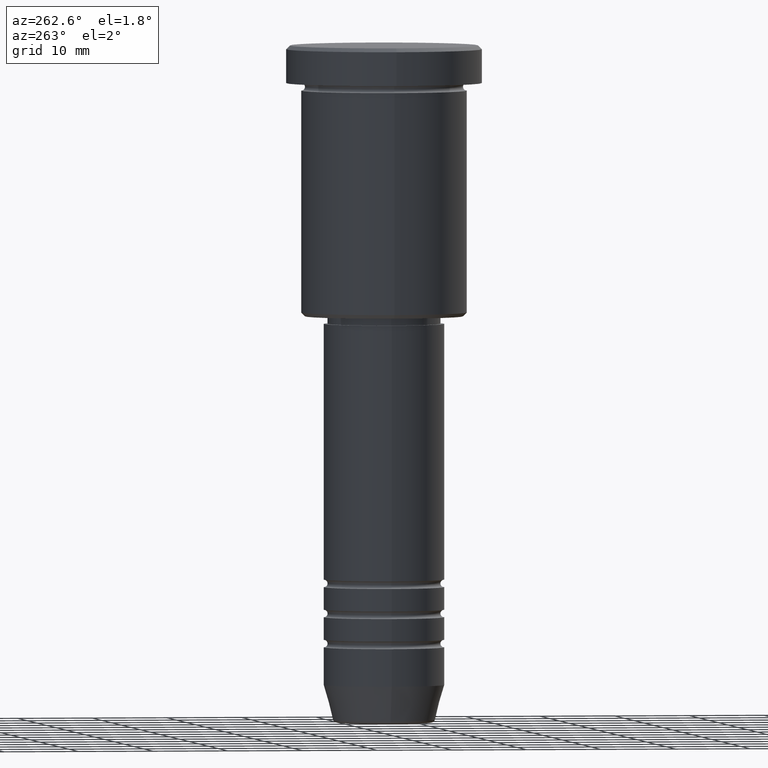
[diagram: clean part render]
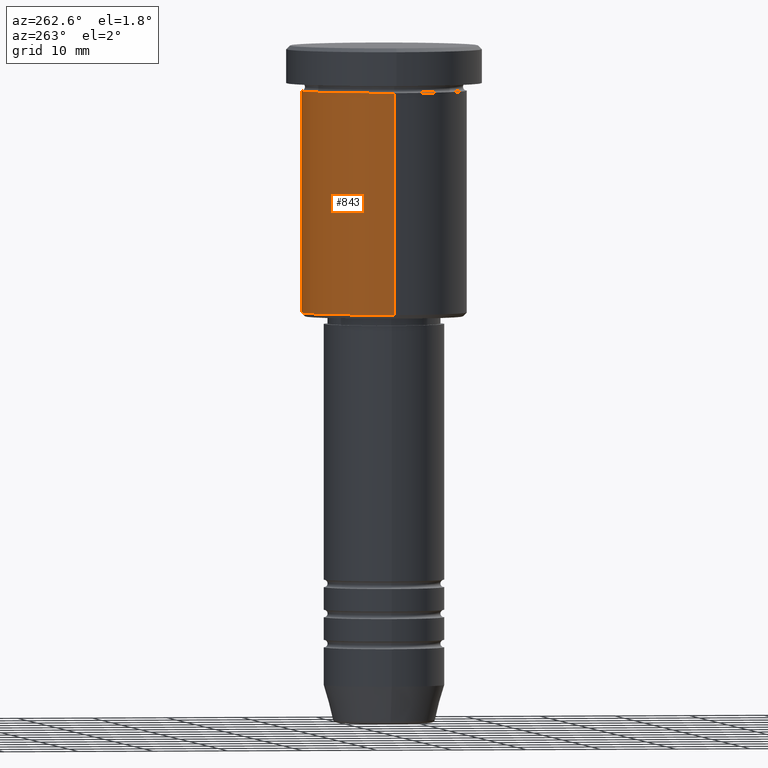
[diagram: same view with one face highlighted and labeled with its STEP entity id]
A machine part, auxiliary view. The second image highlights one B-rep face of the part: STEP entity #843.
In plain terms, the highlighted cylindrical surface (partial cylindrical patch) has radius 11 mm, axis along (-0, -0, 1).
Its self-contained STEP definition (entity closure, byte-faithful):
#27 = DIRECTION ( 'NONE',  ( 1.000000000000000000, 0.000000000000000000, 0.000000000000000000 ) ) ;
#29 = DIRECTION ( 'NONE',  ( -0.000000000000000000, -0.000000000000000000, 1.000000000000000000 ) ) ;
#58 = DIRECTION ( 'NONE',  ( 1.000000000000000000, 0.000000000000000000, 0.000000000000000000 ) ) ;
#73 = CARTESIAN_POINT ( 'NONE',  ( 0.000000000000000000, 0.000000000000000000, -5.999999999999999112 ) ) ;
#102 = EDGE_CURVE ( 'NONE', #649, #290, #391, .T. ) ;
#134 = VERTEX_POINT ( 'NONE', #295 ) ;
#216 = ORIENTED_EDGE ( 'NONE', *, *, #835, .T. ) ;
#279 = EDGE_CURVE ( 'NONE', #134, #290, #947, .T. ) ;
#286 = AXIS2_PLACEMENT_3D ( 'NONE', #454, #585, #527 ) ;
#290 = VERTEX_POINT ( 'NONE', #618 ) ;
#295 = CARTESIAN_POINT ( 'NONE',  ( -11.00000000000000000, 1.347111479062088405E-15, -35.49999999999998579 ) ) ;
#323 = CARTESIAN_POINT ( 'NONE',  ( 0.000000000000000000, 0.000000000000000000, 0.000000000000000000 ) ) ;
#327 = ORIENTED_EDGE ( 'NONE', *, *, #102, .F. ) ;
#345 = LINE ( 'NONE', #704, #374 ) ;
#346 = VECTOR ( 'NONE', #29, 1000.000000000000000 ) ;
#374 = VECTOR ( 'NONE', #966, 1000.000000000000000 ) ;
#391 = CIRCLE ( 'NONE', #1072, 11.00000000000000000 ) ;
#417 = VERTEX_POINT ( 'NONE', #720 ) ;
#441 = FACE_OUTER_BOUND ( 'NONE', #1066, .T. ) ;
#454 = CARTESIAN_POINT ( 'NONE',  ( 0.000000000000000000, 0.000000000000000000, -35.49999999999998579 ) ) ;
#527 = DIRECTION ( 'NONE',  ( -1.000000000000000000, 0.000000000000000000, 0.000000000000000000 ) ) ;
#530 = ORIENTED_EDGE ( 'NONE', *, *, #549, .F. ) ;
#549 = EDGE_CURVE ( 'NONE', #417, #649, #345, .T. ) ;
#585 = DIRECTION ( 'NONE',  ( -0.000000000000000000, -0.000000000000000000, 1.000000000000000000 ) ) ;
#600 = DIRECTION ( 'NONE',  ( -0.000000000000000000, -0.000000000000000000, 1.000000000000000000 ) ) ;
#618 = CARTESIAN_POINT ( 'NONE',  ( -11.00000000000000000, 1.347111479062088405E-15, -5.999999999999999112 ) ) ;
#620 = CARTESIAN_POINT ( 'NONE',  ( 11.00000000000000000, 0.000000000000000000, -5.999999999999999112 ) ) ;
#649 = VERTEX_POINT ( 'NONE', #620 ) ;
#704 = CARTESIAN_POINT ( 'NONE',  ( 11.00000000000000000, 0.000000000000000000, 0.000000000000000000 ) ) ;
#710 = CIRCLE ( 'NONE', #286, 11.00000000000000000 ) ;
#717 = CYLINDRICAL_SURFACE ( 'NONE', #955, 11.00000000000000000 ) ;
#720 = CARTESIAN_POINT ( 'NONE',  ( 11.00000000000000000, 0.000000000000000000, -35.49999999999998579 ) ) ;
#749 = DIRECTION ( 'NONE',  ( -0.000000000000000000, -0.000000000000000000, 1.000000000000000000 ) ) ;
#835 = EDGE_CURVE ( 'NONE', #417, #134, #710, .T. ) ;
#843 = ADVANCED_FACE ( 'NONE', ( #441 ), #717, .T. ) ;
#942 = ORIENTED_EDGE ( 'NONE', *, *, #279, .T. ) ;
#947 = LINE ( 'NONE', #1027, #346 ) ;
#955 = AXIS2_PLACEMENT_3D ( 'NONE', #323, #600, #58 ) ;
#966 = DIRECTION ( 'NONE',  ( -0.000000000000000000, -0.000000000000000000, 1.000000000000000000 ) ) ;
#1027 = CARTESIAN_POINT ( 'NONE',  ( -11.00000000000000000, 1.347111479062088405E-15, 0.000000000000000000 ) ) ;
#1066 = EDGE_LOOP ( 'NONE', ( #216, #942, #327, #530 ) ) ;
#1072 = AXIS2_PLACEMENT_3D ( 'NONE', #73, #749, #27 ) ;